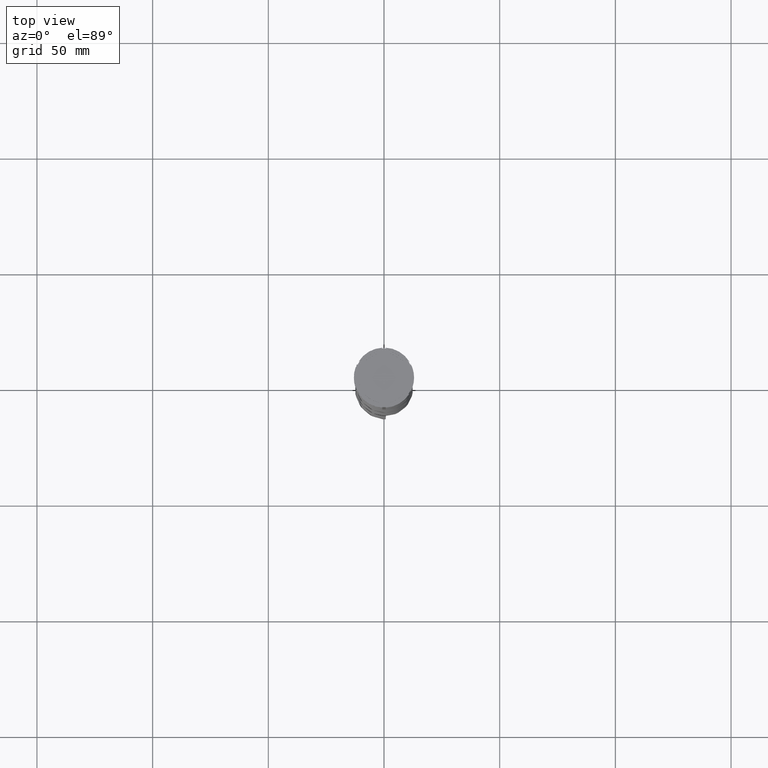
[diagram: clean part render]
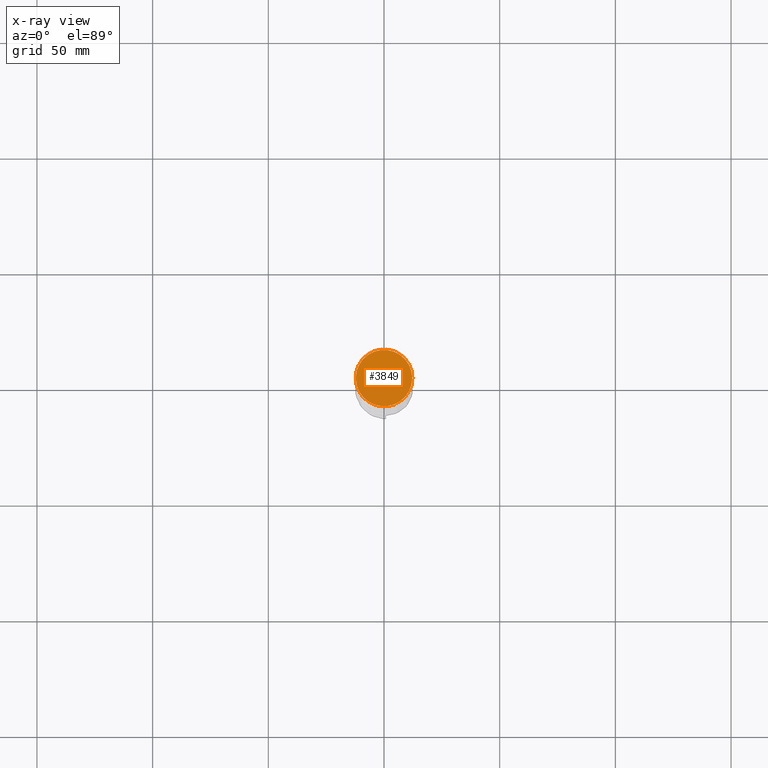
[diagram: x-ray — body ghosted, one internal face saturated and labeled with its STEP entity id]
A machine part, top view, then the same camera in x-ray: the body is ghosted and one INTERNAL B-rep face — a face not visible from any outside direction — is saturated and labeled: STEP entity #3849.
In plain terms, the highlighted planar face has unit normal (0, 0, -1).
Its self-contained STEP definition (entity closure, byte-faithful):
#178 = AXIS2_PLACEMENT_3D ( 'NONE', #1698, #624, #4467 ) ;
#399 = DIRECTION ( 'NONE',  ( -0.000000000000000000, -0.000000000000000000, 1.000000000000000000 ) ) ;
#624 = DIRECTION ( 'NONE',  ( -0.000000000000000000, -0.000000000000000000, 1.000000000000000000 ) ) ;
#824 = CIRCLE ( 'NONE', #178, 12.20000000000000639 ) ;
#873 = CARTESIAN_POINT ( 'NONE',  ( -12.20000000000000639, 0.000000000000000000, -12.00000000000000000 ) ) ;
#1102 = CARTESIAN_POINT ( 'NONE',  ( 0.000000000000000000, 0.000000000000000000, -12.00000000000000000 ) ) ;
#1198 = CIRCLE ( 'NONE', #1572, 12.20000000000000639 ) ;
#1233 = EDGE_CURVE ( 'NONE', #2706, #2752, #824, .T. ) ;
#1473 = DIRECTION ( 'NONE',  ( -1.000000000000000000, 0.000000000000000000, 0.000000000000000000 ) ) ;
#1524 = EDGE_LOOP ( 'NONE', ( #3476, #3325 ) ) ;
#1572 = AXIS2_PLACEMENT_3D ( 'NONE', #3595, #399, #1473 ) ;
#1698 = CARTESIAN_POINT ( 'NONE',  ( 0.000000000000000000, 0.000000000000000000, -12.00000000000000000 ) ) ;
#1733 = EDGE_CURVE ( 'NONE', #2752, #2706, #1198, .T. ) ;
#1818 = CARTESIAN_POINT ( 'NONE',  ( 12.20000000000000639, 1.512438796946981880E-15, -12.00000000000000000 ) ) ;
#2706 = VERTEX_POINT ( 'NONE', #873 ) ;
#2752 = VERTEX_POINT ( 'NONE', #1818 ) ;
#2844 = PLANE ( 'NONE',  #3619 ) ;
#3142 = DIRECTION ( 'NONE',  ( -1.000000000000000000, 0.000000000000000000, -0.000000000000000000 ) ) ;
#3163 = FACE_OUTER_BOUND ( 'NONE', #1524, .T. ) ;
#3210 = DIRECTION ( 'NONE',  ( 0.000000000000000000, 0.000000000000000000, -1.000000000000000000 ) ) ;
#3325 = ORIENTED_EDGE ( 'NONE', *, *, #1733, .T. ) ;
#3476 = ORIENTED_EDGE ( 'NONE', *, *, #1233, .T. ) ;
#3595 = CARTESIAN_POINT ( 'NONE',  ( 0.000000000000000000, 0.000000000000000000, -12.00000000000000000 ) ) ;
#3619 = AXIS2_PLACEMENT_3D ( 'NONE', #1102, #3210, #3142 ) ;
#3849 = ADVANCED_FACE ( 'NONE', ( #3163 ), #2844, .F. ) ;
#4467 = DIRECTION ( 'NONE',  ( -1.000000000000000000, 0.000000000000000000, 0.000000000000000000 ) ) ;